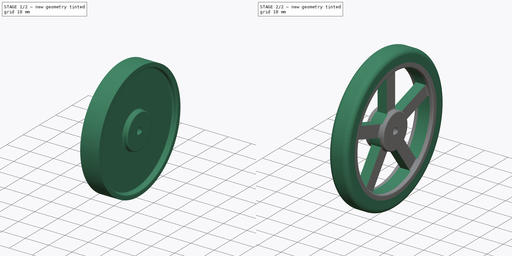
[diagram: build sequence overview — one tinted view per stage of 2, left to right]
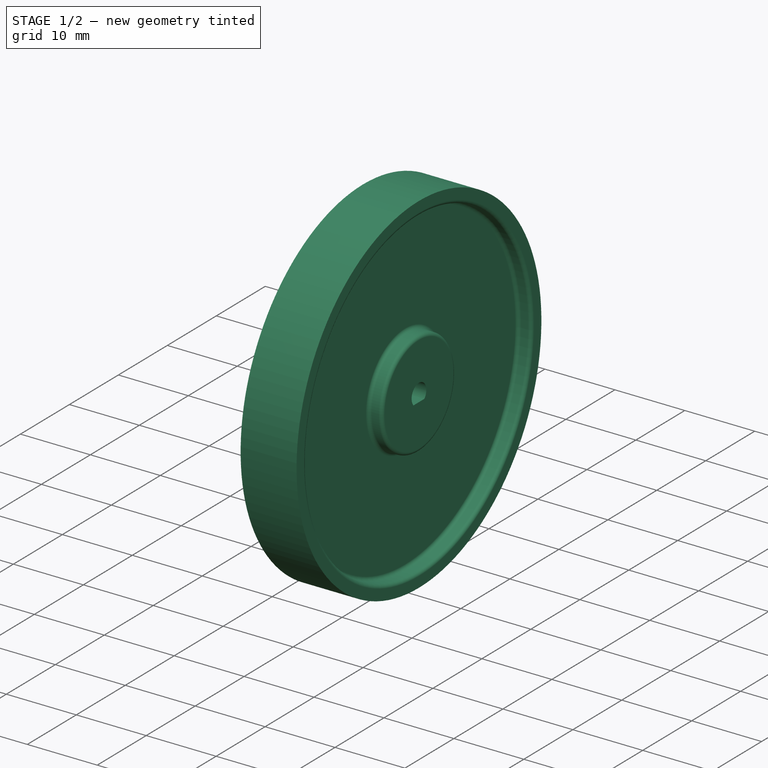
[diagram: stage 1 of 2 — iso view after this stage's code; geometry added in this stage tinted green]
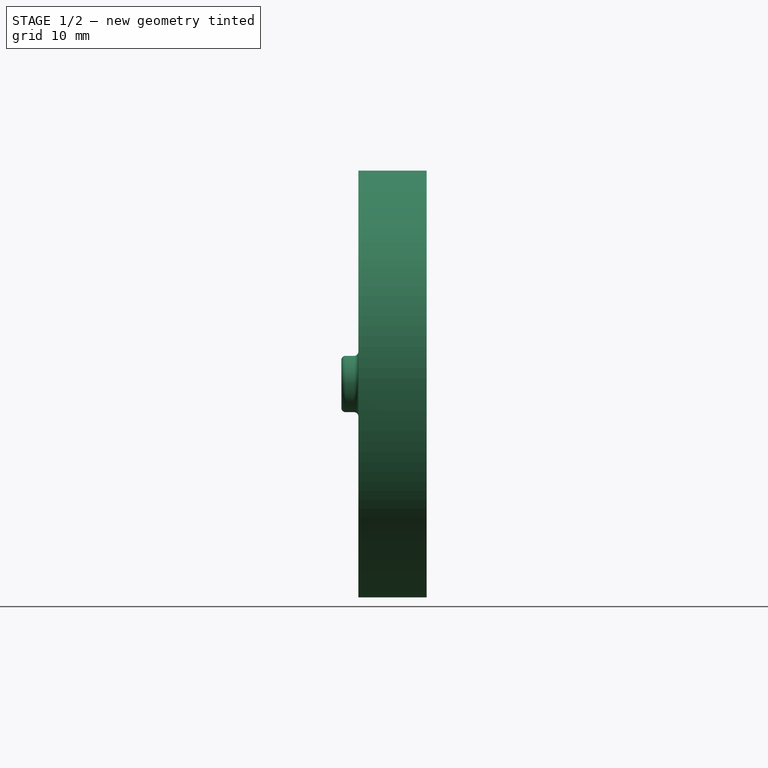
[diagram: stage 1 of 2 — front view after this stage's code; geometry added in this stage tinted green]
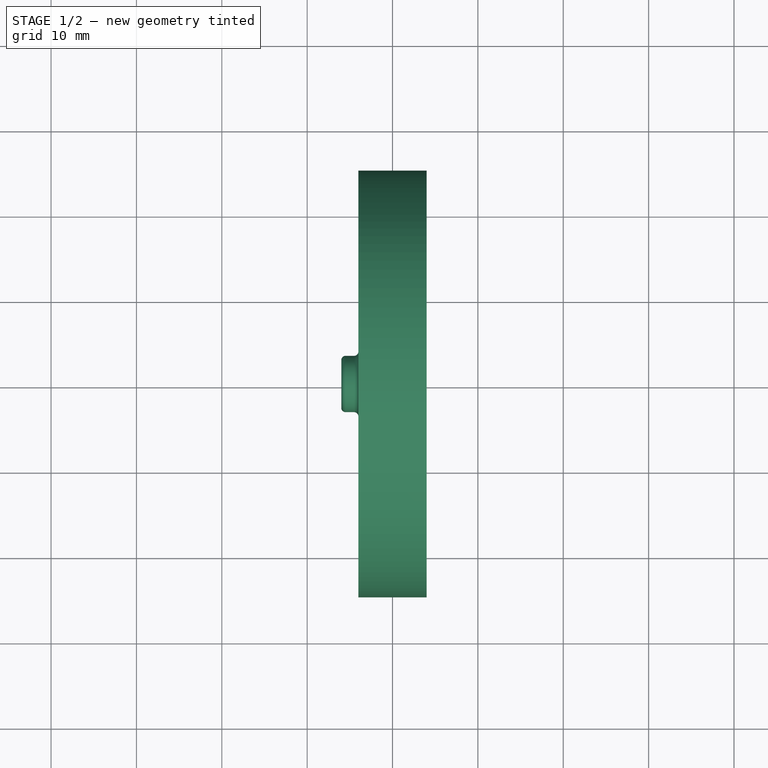
[diagram: stage 1 of 2 — top view after this stage's code; geometry added in this stage tinted green]
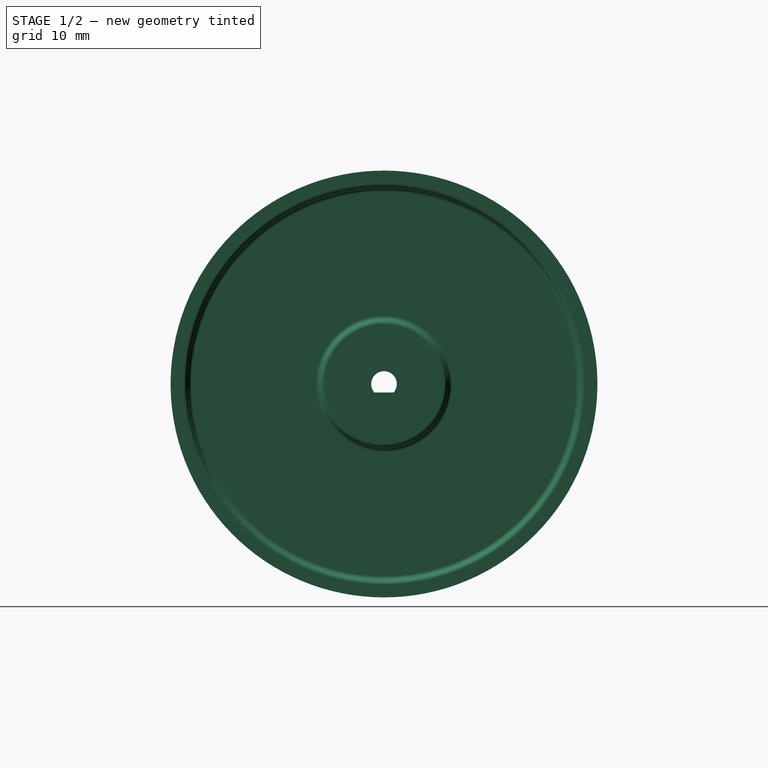
[diagram: stage 1 of 2 — right view after this stage's code; geometry added in this stage tinted green]
FCSTD DOCUMENT  (FreeCAD 0.20R29177 +426 (Git))
Label: Pololu_Wheels
License: All rights reserved
LicenseURL: http://en.wikipedia.org/wiki/All_rights_reserved
objects: Sketcher::SketchObject×4, PartDesign::Revolution×2, PartDesign::Body×2, PartDesign::Pocket×2, Spreadsheet::Sheet×1, App::Part×1
note: 14 computed .brp shape members not serialized (recipe doc carries the construction recipe); baked Part::Feature solids carry a one-line shape summary decoded from their .brp

FEATURE [Spreadsheet::Sheet] Spreadsheet  label="params"
  cells = A2=POLOLU WHEEL PARAMS; A3=Wheel Diam; B3(wheel_diam)==60mm; C3=Tire Width; D3(tire_width)==wheel_rim_width; A4=Wheel Hub Pin Diam; B4(wheel_hub_pin_daim)==6.6mm; C4=Tire Height; D4(tire_height)==5mm; A5=Wheel Hub Diam; B5(wheel_hub_diam)==15mm; C5=Std Rad; D5(std_rad)==0.5mm; A6=Wheel Rim Width; B6(wheel_rim_width)==8mm; C6=Shaft Diam; D6(shaft_diam)==3mm; A7=Wheel Rim Height; B7(wheel_rim_height)==5mm; A8=Wheel Rim Width Inner; B8(wheel_rim_width_inner)==wheel_rim_width / 2; A9=Wheel Rim Outer Height; B9(wheel_rim_outer_height)==2mm
FEATURE [Sketcher::SketchObject] Sketch
  FullyConstrained = true
  MapMode = 5
  Placement = pos=(0,0,0) rot=(1,0,0;1.5708rad)
  Support = -> [XZ_Plane001]
  expr: Constraints[46] = 6.6mm / 2
  expr: Constraints[47] = <<params>>.std_rad
  expr: Constraints[53] = <<params>>.wheel_rim_width_inner
  expr: Constraints[54] = <<params>>.wheel_rim_width
  expr: Constraints[55] = <<params>>.wheel_rim_width
  expr: Constraints[64] = <<params>>.wheel_rim_width + 2mm
  expr: Constraints[65] = <<params>>.wheel_hub_diam / 2
  expr: Constraints[66] = (<<params>>.wheel_diam - 2 * <<params>>.tire_height) / 2
  expr: Constraints[67] = <<params>>.wheel_rim_outer_height
  sketch-geometry (28):
    g0: LineSegment StartX=-4 StartY=25 StartZ=0 EndX=4 EndY=25 EndZ=0
    g1: LineSegment StartX=-6 StartY=0 StartZ=0 EndX=-6 EndY=2.8 EndZ=0
    g2: LineSegment StartX=-5.5 StartY=3.3 StartZ=0 EndX=-4.5 EndY=3.3 EndZ=0
    g3: LineSegment StartX=-4 StartY=3.8 StartZ=0 EndX=-4 EndY=7 EndZ=0
    g4: LineSegment StartX=-3.5 StartY=7.5 StartZ=0 EndX=-2.5 EndY=7.5 EndZ=0
    g5: LineSegment StartX=-2 StartY=8 StartZ=0 EndX=-2 EndY=22.5 EndZ=0
    g6: LineSegment StartX=-2.5 StartY=23 StartZ=0 EndX=-3.5 EndY=23 EndZ=0
    g7: LineSegment StartX=-4 StartY=23.5 StartZ=0 EndX=-4 EndY=25 EndZ=0
    g8: LineSegment StartX=-6 StartY=0 StartZ=0 EndX=4 EndY=0 EndZ=0
    g9: LineSegment StartX=4 StartY=0 StartZ=0 EndX=4 EndY=7 EndZ=0
    g10: LineSegment StartX=3.5 StartY=7.5 StartZ=0 EndX=2.5 EndY=7.5 EndZ=0
    g11: LineSegment StartX=4 StartY=25 StartZ=0 EndX=4 EndY=23.5 EndZ=0
    g12: LineSegment StartX=3.5 StartY=23 StartZ=0 EndX=2.5 EndY=23 EndZ=0
    g13: LineSegment StartX=2 StartY=22.5 StartZ=0 EndX=2 EndY=8 EndZ=0
    g14: LineSegment StartX=-4 StartY=23.5 StartZ=0 EndX=4 EndY=23.5 EndZ=0
    g15: GeomPoint X=0 Y=25 Z=0
    g16: ArcOfCircle CenterX=-2.5 CenterY=8 CenterZ=0 NormalX=0 NormalY=0 NormalZ=1 AngleXU=0 Radius=0.5 StartAngle=4.71239 EndAngle=6.28319
    g17: ArcOfCircle CenterX=2.5 CenterY=8 CenterZ=0 NormalX=0 NormalY=0 NormalZ=1 AngleXU=0 Radius=0.5 StartAngle=3.14159 EndAngle=4.71239
    g18: ArcOfCircle CenterX=3.5 CenterY=7 CenterZ=0 NormalX=0 NormalY=0 NormalZ=1 AngleXU=0 Radius=0.5 StartAngle=6e-16 EndAngle=1.5708
    g19: ArcOfCircle CenterX=-3.5 CenterY=7 CenterZ=0 NormalX=0 NormalY=0 NormalZ=1 AngleXU=0 Radius=0.5 StartAngle=1.5708 EndAngle=3.14159
    g20: ArcOfCircle CenterX=-4.5 CenterY=3.8 CenterZ=0 NormalX=0 NormalY=0 NormalZ=1 AngleXU=0 Radius=0.5 StartAngle=4.71239 EndAngle=6.28319
    g21: ArcOfCircle CenterX=-5.5 CenterY=2.8 CenterZ=0 NormalX=0 NormalY=0 NormalZ=1 AngleXU=0 Radius=0.5 StartAngle=1.5708 EndAngle=3.14159
    g22: ArcOfCircle CenterX=-2.5 CenterY=22.5 CenterZ=0 NormalX=0 NormalY=0 NormalZ=1 AngleXU=0 Radius=0.5 StartAngle=2.6e-15 EndAngle=1.5708
    g23: ArcOfCircle CenterX=2.5 CenterY=22.5 CenterZ=0 NormalX=0 NormalY=0 NormalZ=1 AngleXU=0 Radius=0.5 StartAngle=1.5708 EndAngle=3.14159
    g24: LineSegment StartX=-2 StartY=8 StartZ=0 EndX=2 EndY=8 EndZ=0
    g25: GeomPoint X=0 Y=8 Z=0
    g26: ArcOfCircle CenterX=-3.5 CenterY=23.5 CenterZ=0 NormalX=0 NormalY=0 NormalZ=1 AngleXU=0 Radius=0.5 StartAngle=3.14159 EndAngle=4.71239
    g27: ArcOfCircle CenterX=3.5 CenterY=23.5 CenterZ=0 NormalX=0 NormalY=0 NormalZ=1 AngleXU=0 Radius=0.5 StartAngle=4.71239 EndAngle=6.28319
  constraints (68):
    c: Horizontal(g0)
    c: PointOnObject(g1,g-1)
    c: Vertical(g1)
    c: Horizontal(g2)
    c: Vertical(g3)
    c: Horizontal(g4)
    c: Vertical(g5)
    c: Horizontal(g6)
    c: Coincident(g7,g0)
    c: Coincident(g8,g1)
    c: Horizontal(g8)
    c: Coincident(g9,g8)
    c: Vertical(g9)
    c: Horizontal(g10)
    c: Vertical(g7)
    c: Coincident(g11,g0)
    c: Vertical(g11)
    c: Horizontal(g12)
    c: Vertical(g13)
    c: Horizontal(g14)
    c: PointOnObject(g15,g-2)
    c: Symmetric(g0,g0,g15)
    c: Tangent(g4,g16) = -1.5708
    c: Tangent(g5,g16) = -1.5708
    c: Tangent(g13,g17) = -1.5708
    c: Tangent(g10,g17) = 1.5708
    c: Tangent(g10,g18) = -1.5708
    c: Tangent(g9,g18) = -1.5708
    c: Tangent(g4,g19) = 1.5708
    c: Tangent(g3,g19) = 1.5708
    c: Tangent(g3,g20) = -1.5708
    c: Tangent(g2,g20) = -1.5708
    c: Tangent(g1,g21) = 1.5708
    c: Tangent(g2,g21) = 1.5708
    c: Tangent(g5,g22) = -1.5708
    c: Tangent(g6,g22) = -1.5708
    c: Tangent(g13,g23) = -1.5708
    c: Tangent(g12,g23) = -1.5708
    c: Coincident(g24,g5)
    c: Coincident(g24,g13)
    c: Horizontal(g24)
    c: Equal(g4,g10)
    c: Equal(g17,g16)
    c: Equal(g19,g18)
    c: Equal(g22,g23)
    c: Equal(g20,g21)
    c: DistanceY(g1,g2) = 3.3
    c: Radius(g21) = 0.5
    c: Equal(g20,g19)
    c: Equal(g16,g19)
    c: Equal(g22,g16)
    c: PointOnObject(g25,g-2)
    c: Symmetric(g5,g13,g25)
    c: DistanceX(g5,g13) = 4
    c: DistanceX(g0,g0) = 8
    c: DistanceX(g3,g9) = 8
    c: Tangent(g6,g26) = 1.5708
    c: Tangent(g7,g26) = 1.5708
    c: Tangent(g12,g27) = 1.5708
    c: Tangent(g11,g27) = 1.5708
    c: Equal(g26,g22)
    c: Equal(g23,g27)
    c: Coincident(g14,g7)
    c: Coincident(g14,g11)
    c: DistanceX(g1,g8) = 10
    c: DistanceY(g8,g10) = 7.5
    c: DistanceY(g-1,g0) = 25
    c: DistanceY(g12,g0) = 2
FEATURE [PartDesign::Revolution] Revolution
  Angle = 360
  Axis = (1,0,0)
  Base = (0,0,0)
  Placement = pos=(0,0,0) rot=(1,0,0;1.5708rad)
  Profile = -> Sketch
  ReferenceAxis = -> Sketch [H_Axis]
FEATURE [PartDesign::Body] Body  label="WheelTire"
  Group = -> [Sketch001,Revolution001]
  Origin = -> Origin001
  Tip = -> Revolution001
FEATURE [Sketcher::SketchObject] Sketch002
  FullyConstrained = true
  MapMode = 5
  Placement = pos=(0,0,0) rot=(0.57735,0.57735,0.57735;2.0944rad)
  Support = -> [YZ_Plane002]
  expr: Constraints[1] = <<params>>.shaft_diam
  expr: Constraints[7] = <<params>>.shaft_diam / 3
  sketch-geometry (3):
    g0: Circle CenterX=0 CenterY=0 CenterZ=0 NormalX=0 NormalY=0 NormalZ=1 AngleXU=0 Radius=1.5
    g1: LineSegment StartX=-1.11803 StartY=-1 StartZ=0 EndX=1.11803 EndY=-1 EndZ=0
    g2: ArcOfCircle CenterX=0 CenterY=0 CenterZ=0 NormalX=0 NormalY=0 NormalZ=1 AngleXU=0 Radius=1.5 StartAngle=5.55346 EndAngle=10.1545
  constraints (8):
    c: Coincident(g0,g-1)
    c: Diameter(g0) = 3
    c: PointOnObject(g1,g0)
    c: Horizontal(g1)
    c: Coincident(g2,g-1)
    c: Coincident(g2,g1)
    c: Coincident(g2,g1)
    c: DistanceY(g1,g2) = 1
FEATURE [PartDesign::Pocket] Pocket
  BaseFeature = -> Revolution
  Direction = (1,1,1)
  Length = 5
  Length2 = 100
  Midplane = true
  Placement = pos=(0,0,0) rot=(1,0,0;1.5708rad)
  Profile = -> Sketch002
  Type = 1
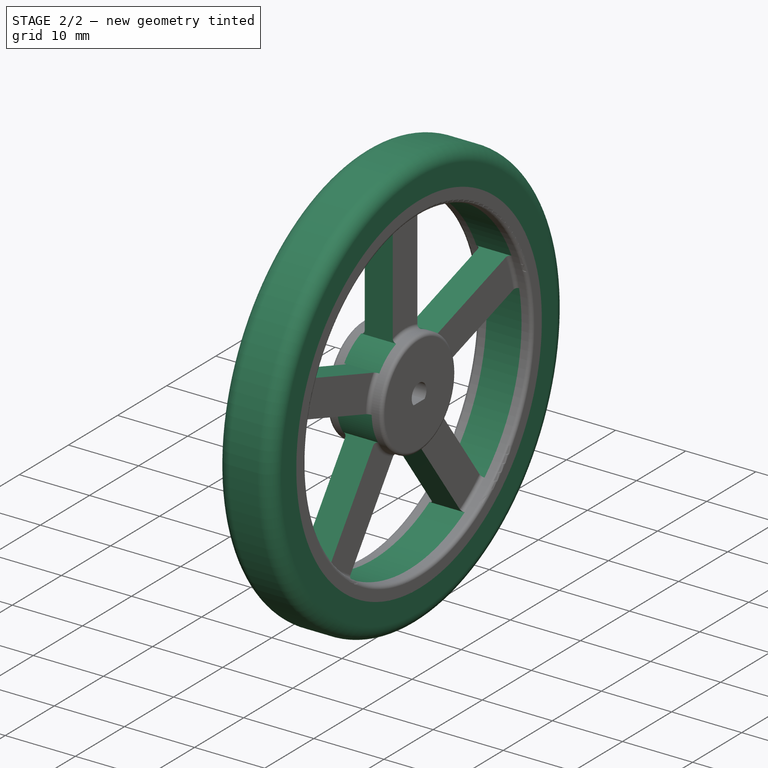
[diagram: stage 2 of 2 — iso view after this stage's code; geometry added in this stage tinted green]
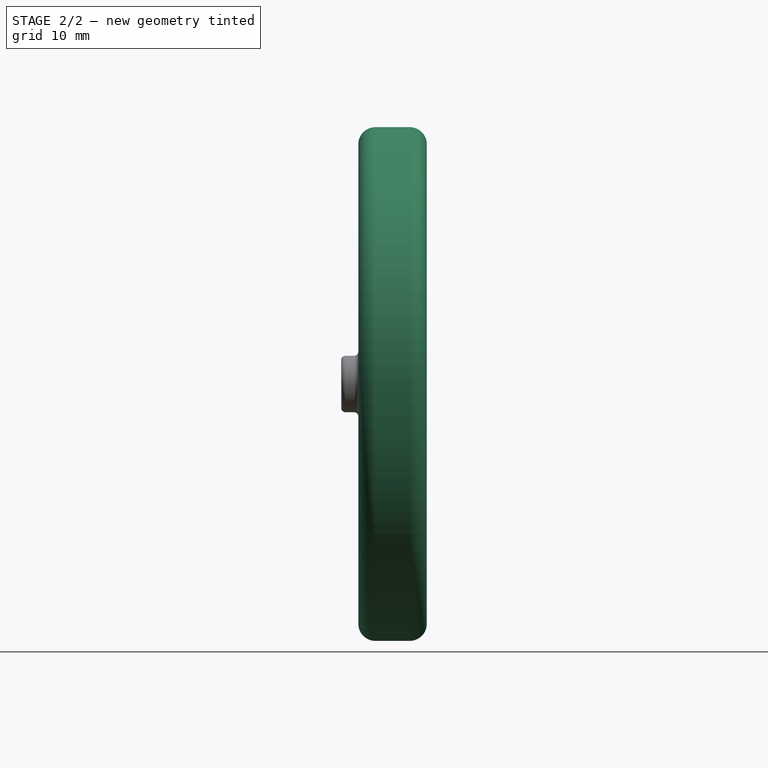
[diagram: stage 2 of 2 — front view after this stage's code; geometry added in this stage tinted green]
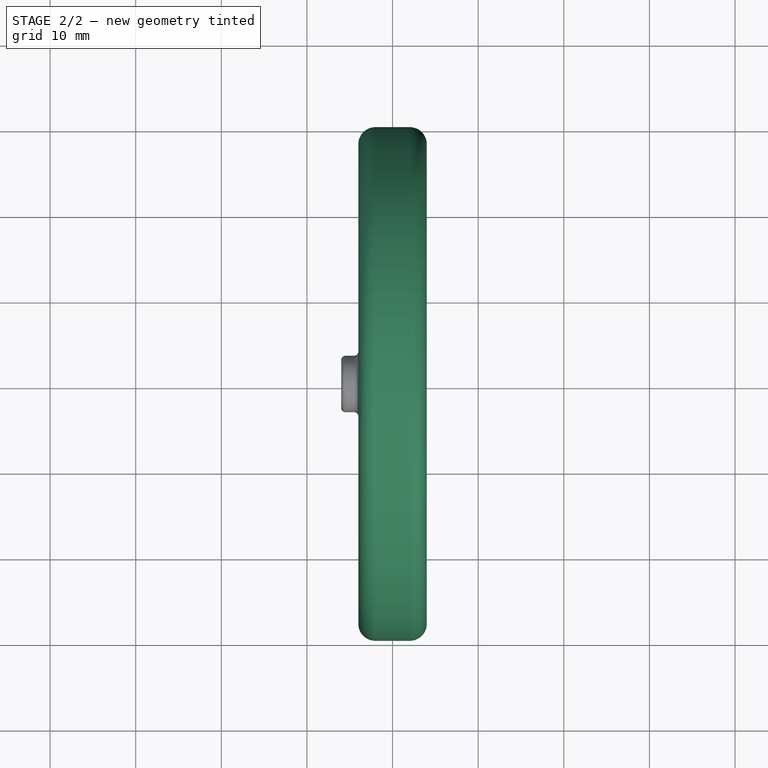
[diagram: stage 2 of 2 — top view after this stage's code; geometry added in this stage tinted green]
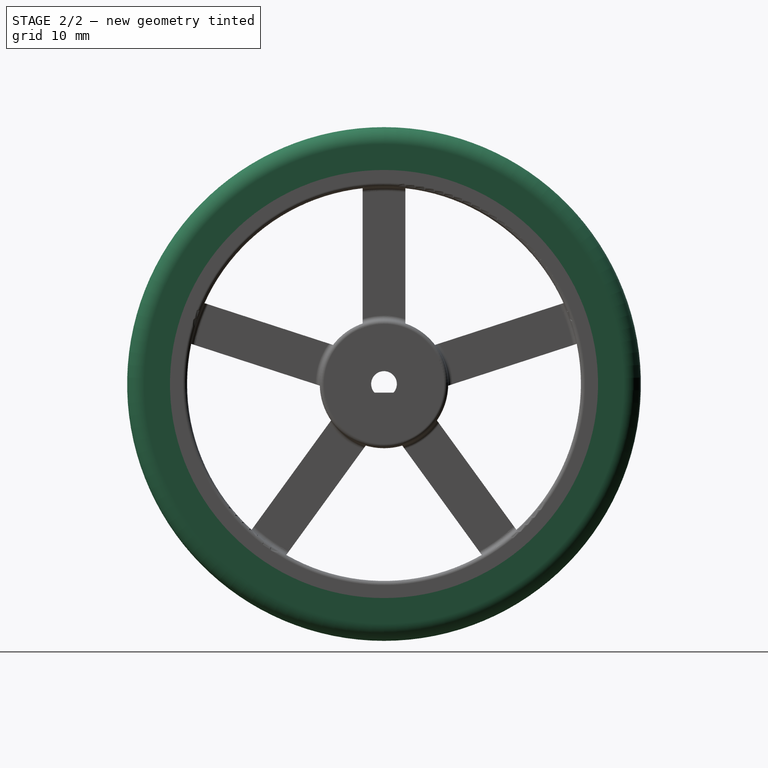
[diagram: stage 2 of 2 — right view after this stage's code; geometry added in this stage tinted green]
FEATURE [Sketcher::SketchObject] Sketch001
  FullyConstrained = true
  MapMode = 5
  Placement = pos=(0,0,0) rot=(1,0,0;1.5708rad)
  Support = -> [XZ_Plane001]
  expr: Constraints[14] = <<params>>.tire_height
  expr: Constraints[15] = <<params>>.tire_width / 4
  expr: Constraints[16] = <<params>>.tire_width
  expr: Constraints[17] = <<params>>.wheel_diam / 2
  sketch-geometry (7):
    g0: LineSegment StartX=-2 StartY=30 StartZ=0 EndX=2 EndY=30 EndZ=0
    g1: LineSegment StartX=4 StartY=28 StartZ=0 EndX=4 EndY=25 EndZ=0
    g2: LineSegment StartX=4 StartY=25 StartZ=0 EndX=-4 EndY=25 EndZ=0
    g3: LineSegment StartX=-4 StartY=25 StartZ=0 EndX=-4 EndY=28 EndZ=0
    g4: LineSegment StartX=0 StartY=0 StartZ=0 EndX=0 EndY=25 EndZ=0
    g5: ArcOfCircle CenterX=-2 CenterY=28 CenterZ=0 NormalX=0 NormalY=0 NormalZ=1 AngleXU=0 Radius=2 StartAngle=1.5708 EndAngle=3.14159
    g6: ArcOfCircle CenterX=2 CenterY=28 CenterZ=0 NormalX=0 NormalY=0 NormalZ=1 AngleXU=0 Radius=2 StartAngle=2.6e-13 EndAngle=1.5708
  constraints (18):
    c: Coincident(g1,g2)
    c: Coincident(g2,g3)
    c: Horizontal(g0)
    c: Horizontal(g2)
    c: Vertical(g1)
    c: Vertical(g3)
    c: Coincident(g4,g-1)
    c: PointOnObject(g4,g-2)
    c: Symmetric(g2,g1,g4)
    c: Tangent(g3,g5) = 1.5708
    c: Tangent(g0,g5) = 1.5708
    c: Tangent(g0,g6) = 1.5708
    c: Tangent(g1,g6) = 1.5708
    c: Equal(g5,g6)
    c: DistanceY(g1,g0) = 5
    c: Radius(g6) = 2
    c: DistanceX(g3,g1) = 8
    c: DistanceY(g-1,g0) = 30
FEATURE [PartDesign::Revolution] Revolution001
  Angle = 360
  Axis = (1,0,0)
  Base = (0,0,0)
  Placement = pos=(0,0,0) rot=(1,0,0;1.5708rad)
  Profile = -> Sketch001
  ReferenceAxis = -> Sketch001 [H_Axis]
FEATURE [Sketcher::SketchObject] Sketch003
  FullyConstrained = true
  MapMode = 5
  Placement = pos=(0,0,0) rot=(0.57735,0.57735,0.57735;2.0944rad)
  Support = -> [YZ_Plane002]
  expr: Constraints[2] = <<params>>.wheel_hub_diam
  expr: Constraints[3] = <<params>>.wheel_diam - 2 * <<params>>.tire_height - 2 * <<params>>.wheel_rim_outer_height
  sketch-geometry (37):
    g0: Circle CenterX=0 CenterY=0 CenterZ=0 NormalX=0 NormalY=0 NormalZ=1 AngleXU=0 Radius=7.5
    g1: Circle CenterX=0 CenterY=0 CenterZ=0 NormalX=0 NormalY=0 NormalZ=1 AngleXU=0 Radius=23
    g2: LineSegment StartX=0 StartY=7.5 StartZ=0 EndX=0 EndY=23 EndZ=0
    g3: LineSegment StartX=7.13292 StartY=2.31763 StartZ=0 EndX=21.8743 EndY=7.10739 EndZ=0
    g4: LineSegment StartX=4.40839 StartY=-6.06763 StartZ=0 EndX=13.5191 EndY=-18.6074 EndZ=0
    g5: LineSegment StartX=-4.40839 StartY=-6.06763 StartZ=0 EndX=-13.5191 EndY=-18.6074 EndZ=0
    g6: LineSegment StartX=-7.13292 StartY=2.31763 StartZ=0 EndX=-21.8743 EndY=7.10739 EndZ=0
    g7: LineSegment StartX=-2.5 StartY=22.8637 StartZ=0 EndX=-2.5 EndY=7.07107 EndZ=0
    g8: LineSegment StartX=2.5 StartY=22.8637 StartZ=0 EndX=2.5 EndY=7.07107 EndZ=0
    g9: LineSegment StartX=5.95244 StartY=4.56272 StartZ=0 EndX=20.9722 EndY=9.44292 EndZ=0
    g10: LineSegment StartX=7.49753 StartY=-0.192561 StartZ=0 EndX=22.5172 EndY=4.68764 EndZ=0
    g11: LineSegment StartX=2.13373 StartY=-7.19008 StartZ=0 EndX=11.4164 EndY=-19.9666 EndZ=0
    g12: LineSegment StartX=6.17881 StartY=-4.25115 StartZ=0 EndX=15.4615 EndY=-17.0277 EndZ=0
    g13: LineSegment StartX=-2.13373 StartY=-7.19008 StartZ=0 EndX=-11.4164 EndY=-19.9666 EndZ=0
    g14: LineSegment StartX=-6.17881 StartY=-4.25115 StartZ=0 EndX=-15.4615 EndY=-17.0277 EndZ=0
    g15: LineSegment StartX=-5.95244 StartY=4.56272 StartZ=0 EndX=-20.9722 EndY=9.44292 EndZ=0
    g16: LineSegment StartX=-7.49753 StartY=-0.192561 StartZ=0 EndX=-22.5172 EndY=4.68764 EndZ=0
    g17: ArcOfCircle CenterX=0 CenterY=0 CenterZ=0 NormalX=0 NormalY=0 NormalZ=1 AngleXU=0 Radius=23 StartAngle=0.42307 EndAngle=1.46189
    g18: GeomPoint X=0 Y=22.8637 Z=0
    g19: GeomPoint X=21.7447 Y=7.06528 Z=0
    g20: GeomPoint X=-21.7447 Y=7.06528 Z=0
    g21: GeomPoint X=-13.439 Y=-18.4971 Z=0
    g22: GeomPoint X=13.439 Y=-18.4971 Z=0
    g23: LineSegment StartX=-6.17881 StartY=-4.25115 StartZ=0 EndX=-2.13373 EndY=-7.19008 EndZ=0
    g24: LineSegment StartX=2.13373 StartY=-7.19008 StartZ=0 EndX=6.17881 EndY=-4.25115 EndZ=0
    g25: LineSegment StartX=7.49753 StartY=-0.192561 StartZ=0 EndX=5.95244 EndY=4.56272 EndZ=0
    g26: LineSegment StartX=2.5 StartY=7.07107 StartZ=0 EndX=-2.5 EndY=7.07107 EndZ=0
    g27: LineSegment StartX=-7.49753 StartY=-0.192561 StartZ=0 EndX=-5.95244 EndY=4.56272 EndZ=0
    g28: ArcOfCircle CenterX=0 CenterY=0 CenterZ=0 NormalX=0 NormalY=0 NormalZ=1 AngleXU=0 Radius=23 StartAngle=1.67971 EndAngle=2.71852
    g29: ArcOfCircle CenterX=0 CenterY=0 CenterZ=0 NormalX=0 NormalY=0 NormalZ=1 AngleXU=0 Radius=23 StartAngle=2.93634 EndAngle=3.97516
    g30: ArcOfCircle CenterX=0 CenterY=0 CenterZ=0 NormalX=0 NormalY=0 NormalZ=1 AngleXU=0 Radius=23 StartAngle=4.19298 EndAngle=5.2318
    g31: ArcOfCircle CenterX=0 CenterY=0 CenterZ=0 NormalX=0 NormalY=0 NormalZ=1 AngleXU=0 Radius=23 StartAngle=5.44962 EndAngle=6.48843
    g32: ArcOfCircle CenterX=0 CenterY=0 CenterZ=0 NormalX=0 NormalY=0 NormalZ=1 AngleXU=0 Radius=7.5 StartAngle=1.91063 EndAngle=2.4876
    g33: ArcOfCircle CenterX=0 CenterY=0 CenterZ=0 NormalX=0 NormalY=0 NormalZ=1 AngleXU=0 Radius=7.5 StartAngle=0.653996 EndAngle=1.23096
    g34: ArcOfCircle CenterX=0 CenterY=0 CenterZ=0 NormalX=0 NormalY=0 NormalZ=1 AngleXU=0 Radius=7.5 StartAngle=5.68054 EndAngle=6.25751
    g35: ArcOfCircle CenterX=0 CenterY=0 CenterZ=0 NormalX=0 NormalY=0 NormalZ=1 AngleXU=0 Radius=7.5 StartAngle=4.42391 EndAngle=5.00087
    g36: ArcOfCircle CenterX=0 CenterY=0 CenterZ=0 NormalX=0 NormalY=0 NormalZ=1 AngleXU=0 Radius=7.5 StartAngle=3.16727 EndAngle=3.74423
  constraints (108):
    c: Coincident(g0,g-1)
    c: Coincident(g1,g-1)
    c: Diameter(g0) = 15
    c: Diameter(g1) = 46
    c: PointOnObject(g2,g0)
    c: PointOnObject(g2,g1)
    c: Vertical(g2)
    c: PointOnObject(g2,g-2)
    c: PointOnObject(g3,g0)
    c: PointOnObject(g3,g1)
    c: PointOnObject(g4,g0)
    c: PointOnObject(g4,g1)
    c: PointOnObject(g5,g0)
    c: PointOnObject(g5,g1)
    c: PointOnObject(g6,g0)
    c: PointOnObject(g6,g1)
    c: Perpendicular(g0,g6)
    c: Perpendicular(g0,g3)
    c: Perpendicular(g0,g4)
    c: Perpendicular(g0,g5)
    c: Angle(g3,g2) = 1.25664
    c: Angle(g4,g3) = 1.25664
    c: Angle(g5,g4) = 1.25664
    c: Angle(g6,g5) = 1.25664
    c: PointOnObject(g7,g1)
    c: PointOnObject(g7,g0)
    c: Vertical(g7)
    c: PointOnObject(g8,g1)
    c: PointOnObject(g8,g0)
    c: Vertical(g8)
    c: PointOnObject(g9,g0)
    c: PointOnObject(g10,g0)
    c: PointOnObject(g10,g1)
    c: PointOnObject(g11,g0)
    c: PointOnObject(g11,g1)
    c: PointOnObject(g12,g0)
    c: PointOnObject(g12,g1)
    c: PointOnObject(g13,g0)
    c: PointOnObject(g13,g1)
    c: PointOnObject(g14,g0)
    c: PointOnObject(g14,g1)
    c: PointOnObject(g15,g0)
    c: PointOnObject(g15,g1)
    c: PointOnObject(g16,g0)
    c: PointOnObject(g16,g1)
    c: Parallel(g16,g6)
    c: Parallel(g6,g15)
    c: Parallel(g9,g3)
    c: Parallel(g10,g3)
    c: Parallel(g12,g4)
    c: Parallel(g4,g11)
    c: Parallel(g13,g5)
    c: Parallel(g5,g14)
    c: Coincident(g17,g-1)
    c: Coincident(g17,g8)
    c: Coincident(g17,g9)
    c: PointOnObject(g18,g2)
    c: PointOnObject(g19,g3)
    c: PointOnObject(g20,g6)
    c: PointOnObject(g21,g5)
    c: PointOnObject(g22,g4)
    c: Symmetric(g7,g8,g18)
    c: Symmetric(g9,g10,g19)
    c: Symmetric(g11,g12,g22)
    c: Symmetric(g14,g13,g21)
    c: Symmetric(g16,g15,g20)
    c: Coincident(g23,g14)
    c: Coincident(g23,g13)
    c: Coincident(g24,g11)
    c: Coincident(g24,g12)
    c: Coincident(g25,g10)
    c: Coincident(g25,g9)
    c: Coincident(g26,g8)
    c: Coincident(g26,g7)
    c: Coincident(g27,g16)
    c: Coincident(g27,g15)
    c: Equal(g27,g26)
    c: Equal(g26,g25)
    c: Equal(g24,g25)
    c: Equal(g24,g23)
    c: DistanceX(g7,g8) = 5
    c: Coincident(g28,g17)
    c: Coincident(g28,g15)
    c: Coincident(g29,g17)
    c: Coincident(g29,g14)
    c: Coincident(g30,g17)
    c: Coincident(g30,g11)
    c: Coincident(g31,g17)
    c: Coincident(g31,g10)
    c: PointOnObject(g28,g7)
    c: PointOnObject(g29,g16)
    c: PointOnObject(g31,g12)
    c: PointOnObject(g30,g13)
    c: Coincident(g32,g17)
    c: Coincident(g32,g15)
    c: Coincident(g33,g17)
    c: Coincident(g33,g8)
    c: Coincident(g34,g17)
    c: Coincident(g34,g10)
    c: Coincident(g35,g17)
    c: Coincident(g35,g11)
    c: Coincident(g36,g17)
    c: Coincident(g36,g14)
    c: PointOnObject(g32,g7)
    c: PointOnObject(g33,g9)
    c: PointOnObject(g34,g12)
    c: PointOnObject(g35,g13)
    c: PointOnObject(g36,g16)
FEATURE [PartDesign::Pocket] Pocket001
  BaseFeature = -> Pocket
  Direction = (1,1,1)
  Length = 5
  Length2 = 100
  Midplane = true
  Placement = pos=(0,0,0) rot=(1,0,0;1.5708rad)
  Profile = -> Sketch003
  Type = 1
FEATURE [PartDesign::Body] Body001  label="WheelHub"
  Group = -> [Sketch,Revolution,Sketch002,Pocket,Sketch003,Pocket001]
  Origin = -> Origin002
  Tip = -> Pocket001
FEATURE [App::Part] Part  label="Pololu_Wheel"
  Group = -> [Body,Body001]
  Origin = -> Origin
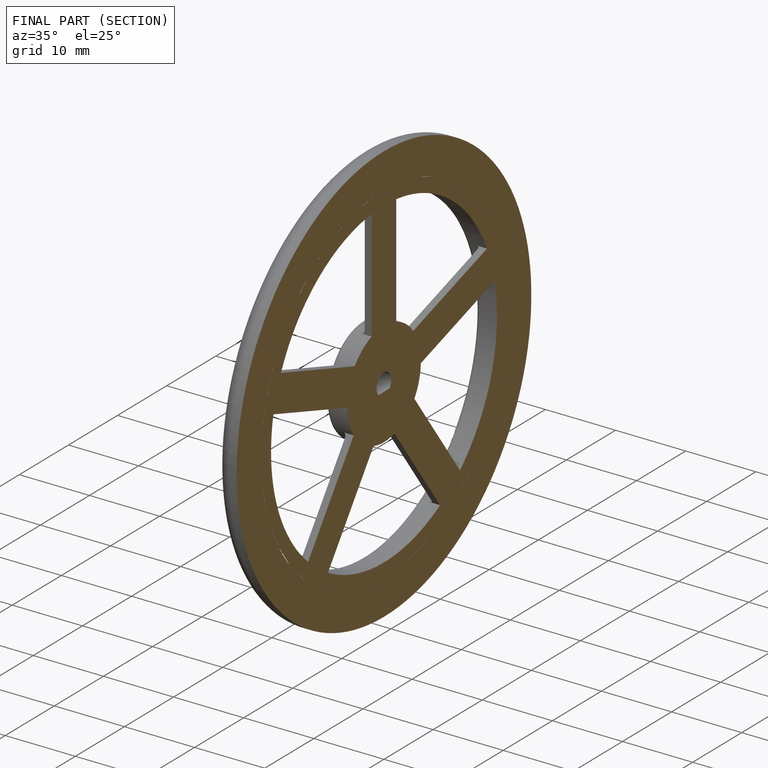
[diagram: finished part — half-section view (interior)]
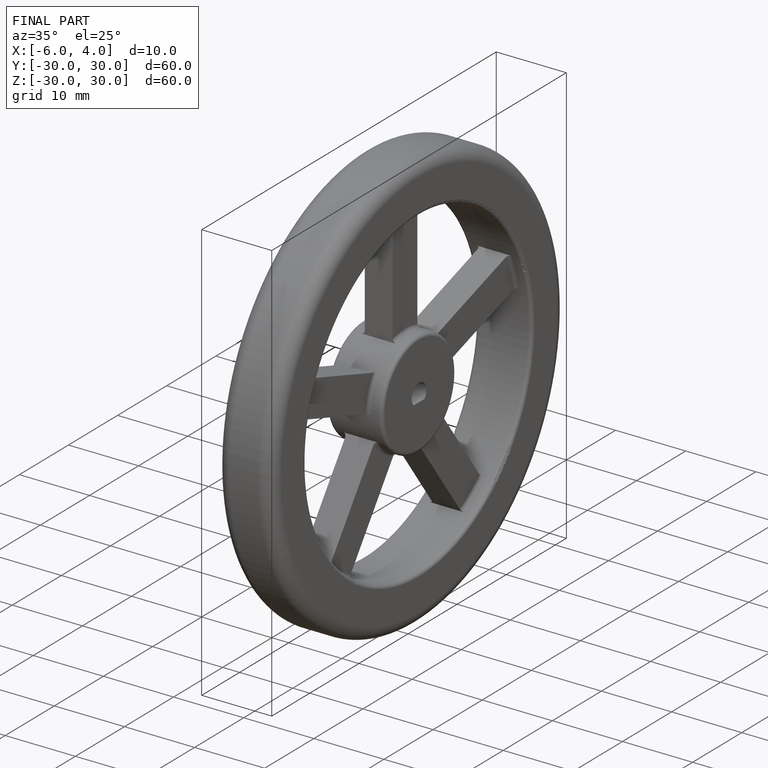
[diagram: finished part — iso view with bounding-box wireframe]
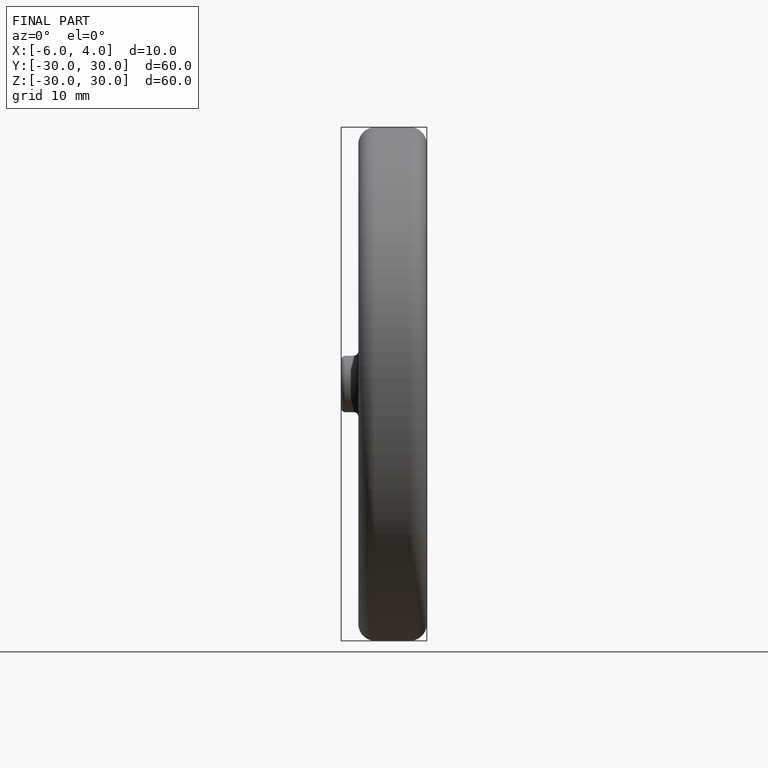
[diagram: finished part — front view with bounding-box wireframe]
